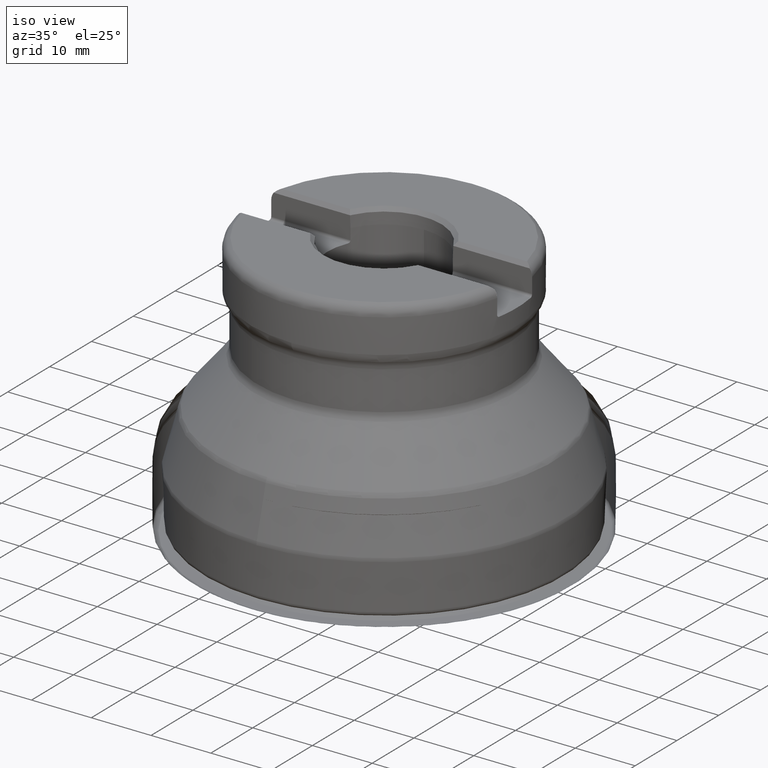
[diagram: clean part render]
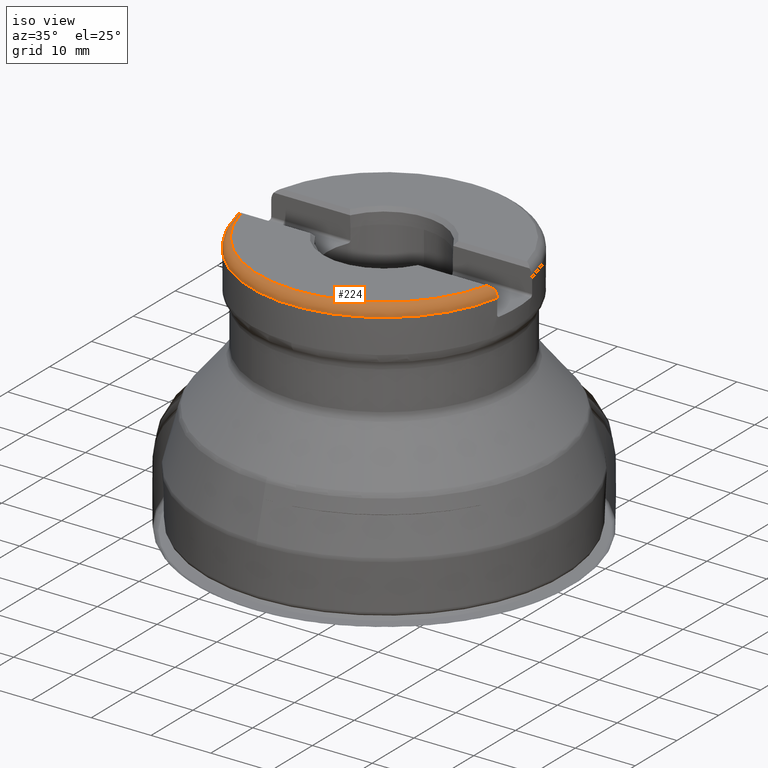
[diagram: same view with one face highlighted and labeled with its STEP entity id]
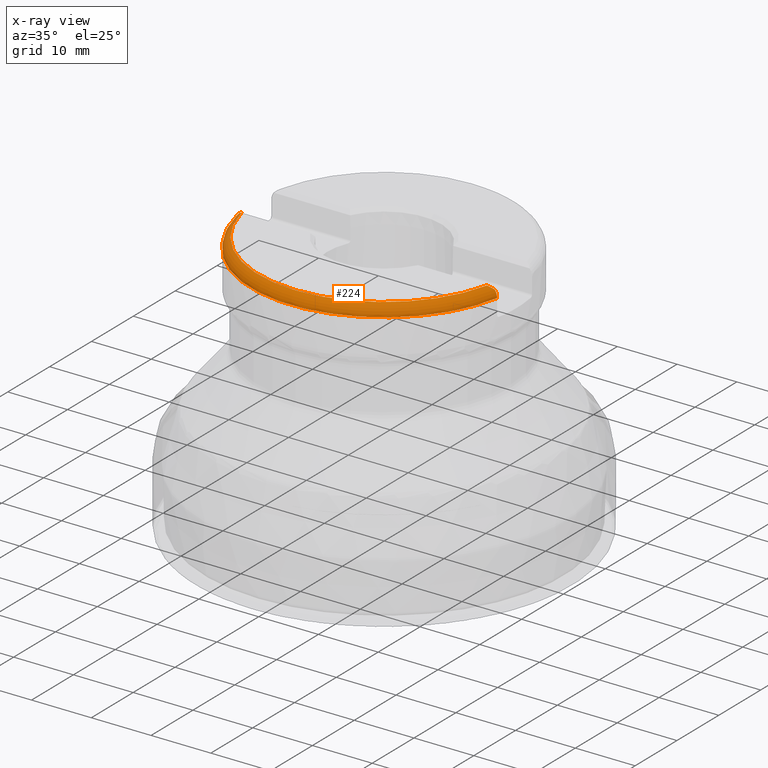
[diagram: x-ray of the same camera — body ghosted, the highlighted face saturated]
A machine part, iso view. The second image highlights one B-rep face of the part: STEP entity #224.
The next image is the same camera in x-ray: the body ghosted, the highlighted face saturated — about 0% of this face is hidden behind the body in this view.
In plain terms, the highlighted toroidal blend (fillet) surface has major radius 20.225 mm and minor (blend) radius 2 mm.
Its self-contained STEP definition (entity closure, byte-faithful):
#186=TOROIDAL_SURFACE('',#1163,20.225,2.);
#201=FACE_OUTER_BOUND('',#470,.T.);
#224=ADVANCED_FACE('',(#201),#186,.T.);
#470=EDGE_LOOP('',(#605,#606,#607,#608,#609,#610));
#605=ORIENTED_EDGE('',*,*,#931,.T.);
#606=ORIENTED_EDGE('',*,*,#932,.T.);
#607=ORIENTED_EDGE('',*,*,#933,.T.);
#608=ORIENTED_EDGE('',*,*,#934,.T.);
#609=ORIENTED_EDGE('',*,*,#935,.T.);
#610=ORIENTED_EDGE('',*,*,#921,.F.);
#827=VERTEX_POINT('',#1843);
#828=VERTEX_POINT('',#1845);
#837=VERTEX_POINT('',#1919);
#838=VERTEX_POINT('',#1927);
#839=VERTEX_POINT('',#1929);
#840=VERTEX_POINT('',#1937);
#921=EDGE_CURVE('',#827,#828,#1035,.T.);
#931=EDGE_CURVE('',#827,#837,#1118,.T.);
#932=EDGE_CURVE('',#837,#838,#1119,.T.);
#933=EDGE_CURVE('',#838,#839,#1039,.T.);
#934=EDGE_CURVE('',#839,#840,#1120,.T.);
#935=EDGE_CURVE('',#840,#828,#1121,.T.);
#1035=CIRCLE('',#1157,22.225);
#1039=CIRCLE('',#1162,21.0967797887081);
#1118=B_SPLINE_CURVE_WITH_KNOTS('',3,(#1909,#1910,#1911,#1912,#1913,#1914,
#1915,#1916,#1917,#1918),.UNSPECIFIED.,.F.,.F.,(4,3,3,4),(0.,0.304829340379241,
0.818742896305841,1.),.UNSPECIFIED.);
#1119=B_SPLINE_CURVE_WITH_KNOTS('',3,(#1920,#1921,#1922,#1923,#1924,#1925,
#1926),.UNSPECIFIED.,.F.,.F.,(4,3,4),(0.,0.832217624562396,1.),
 .UNSPECIFIED.);
#1120=B_SPLINE_CURVE_WITH_KNOTS('',3,(#1930,#1931,#1932,#1933,#1934,#1935,
#1936),.UNSPECIFIED.,.F.,.F.,(4,3,4),(0.,0.837220303151925,1.),
 .UNSPECIFIED.);
#1121=B_SPLINE_CURVE_WITH_KNOTS('',3,(#1938,#1939,#1940,#1941,#1942,#1943,
#1944,#1945,#1946,#1947),.UNSPECIFIED.,.F.,.F.,(4,3,3,4),(0.,0.244823982914968,
0.761023787079892,1.),.UNSPECIFIED.);
#1157=AXIS2_PLACEMENT_3D('',#1844,#1274,#1275);
#1162=AXIS2_PLACEMENT_3D('',#1928,#1287,#1288);
#1163=AXIS2_PLACEMENT_3D('',#1948,#1289,#1290);
#1274=DIRECTION('',(0.,-1.17145536458252E-15,-1.));
#1275=DIRECTION('',(0.,-1.,1.24884479710366E-15));
#1287=DIRECTION('',(0.,-1.17145536458252E-15,-1.));
#1288=DIRECTION('',(0.,1.,-1.31563091114431E-15));
#1289=DIRECTION('',(0.,1.17145536458252E-15,1.));
#1290=DIRECTION('',(0.,-1.,1.24884479710366E-15));
#1843=CARTESIAN_POINT('',(21.8293380568445,-4.17499999999995,42.65));
#1844=CARTESIAN_POINT('',(0.,4.99625712994447E-14,42.65));
#1845=CARTESIAN_POINT('',(-21.8293380568445,-4.17499999999995,42.65));
#1909=CARTESIAN_POINT('',(21.8293380568445,-4.17499999999995,42.65));
#1910=CARTESIAN_POINT('',(21.8293380568445,-4.17499999999995,42.7807420980577));
#1911=CARTESIAN_POINT('',(21.8161512915081,-4.17499999999995,42.912128776034));
#1912=CARTESIAN_POINT('',(21.7901931335284,-4.17499999999995,43.0402680371479));
#1913=CARTESIAN_POINT('',(21.7465245449886,-4.17499999999995,43.255832665184));
#1914=CARTESIAN_POINT('',(21.6650998113057,-4.17499999999995,43.4667704284391));
#1915=CARTESIAN_POINT('',(21.5529462273093,-4.17499999999995,43.6559703969437));
#1916=CARTESIAN_POINT('',(21.5131538626111,-4.17499999999995,43.723099006475));
#1917=CARTESIAN_POINT('',(21.4693313122015,-4.17499999999995,43.7879933674517));
#1918=CARTESIAN_POINT('',(21.4219513583614,-4.17499999999995,43.85));
#1919=CARTESIAN_POINT('',(21.4219513583614,-4.17499999999995,43.85));
#1920=CARTESIAN_POINT('',(21.4219513583614,-4.17499999999995,43.85));
#1921=CARTESIAN_POINT('',(21.2322763809206,-4.37278317690945,44.0477831769095));
#1922=CARTESIAN_POINT('',(20.9960194118546,-4.55364902188782,44.2286490218879));
#1923=CARTESIAN_POINT('',(20.7224203938835,-4.69392828722885,44.3689282872289));
#1924=CARTESIAN_POINT('',(20.6663847352939,-4.72265880343515,44.3976588034352));
#1925=CARTESIAN_POINT('',(20.6086138403839,-4.74978035102767,44.4247803510277));
#1926=CARTESIAN_POINT('',(20.5492942081537,-4.77500000000029,44.4500000000004));
#1927=CARTESIAN_POINT('',(20.5492942081533,-4.77499999999994,44.45));
#1928=CARTESIAN_POINT('',(0.,5.20711909556932E-14,44.45));
#1929=CARTESIAN_POINT('',(-20.5492942081533,-4.77499999999994,44.45));
#1930=CARTESIAN_POINT('',(-20.5492942081533,-4.77499999999994,44.45));
#1931=CARTESIAN_POINT('',(-20.8405479044769,-4.65117394600902,44.3261739460091));
#1932=CARTESIAN_POINT('',(-21.0962803161751,-4.48048504372052,44.1554850437206));
#1933=CARTESIAN_POINT('',(-21.303967487852,-4.2902739272776,43.9652739272777));
#1934=CARTESIAN_POINT('',(-21.3449610549215,-4.25272980697251,43.9277298069726));
#1935=CARTESIAN_POINT('',(-21.3843036087422,-4.21425711036648,43.8892571103666));
#1936=CARTESIAN_POINT('',(-21.4219513583614,-4.17499999999995,43.85));
#1937=CARTESIAN_POINT('',(-21.4219513583614,-4.17499999999995,43.85));
#1938=CARTESIAN_POINT('',(-21.4219513583614,-4.17499999999995,43.85));
#1939=CARTESIAN_POINT('',(-21.4860362968998,-4.17499999999995,43.766131382288));
#1940=CARTESIAN_POINT('',(-21.5436466593816,-4.17499999999995,43.676895415661));
#1941=CARTESIAN_POINT('',(-21.5936447366564,-4.17499999999995,43.5839383467893));
#1942=CARTESIAN_POINT('',(-21.6981618513458,-4.17499999999995,43.3896187817577));
#1943=CARTESIAN_POINT('',(-21.7708067514396,-4.17499999999995,43.1746782166041));
#1944=CARTESIAN_POINT('',(-21.805246639737,-4.17499999999995,42.9567382828812));
#1945=CARTESIAN_POINT('',(-21.8212551557671,-4.17499999999995,42.8554343851313));
#1946=CARTESIAN_POINT('',(-21.8293380568445,-4.17499999999995,42.7525609686225));
#1947=CARTESIAN_POINT('',(-21.8293380568445,-4.17499999999995,42.65));
#1948=CARTESIAN_POINT('',(0.,4.99625712994447E-14,42.65));